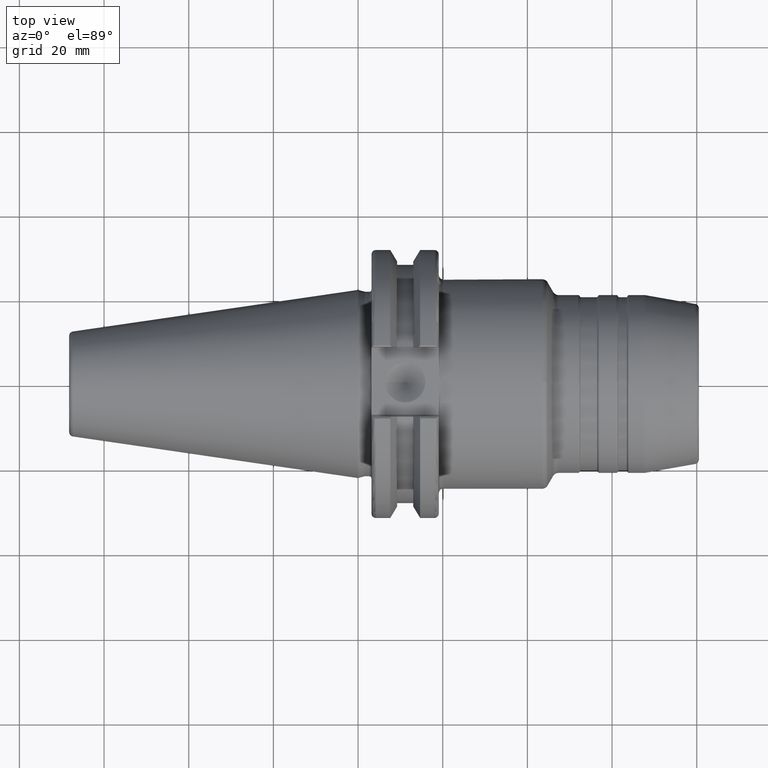
[diagram: clean part render]
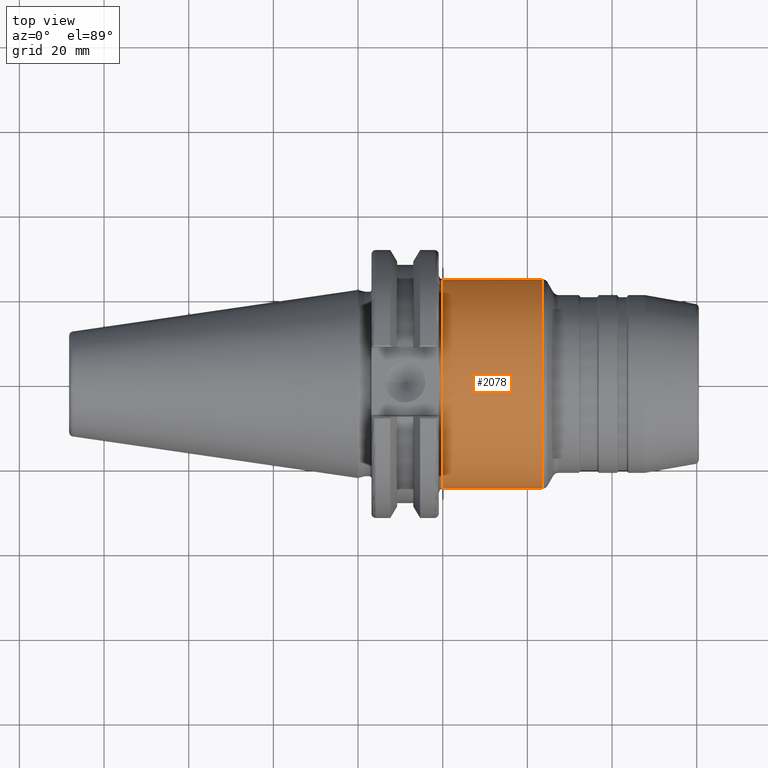
[diagram: same view with one face highlighted and labeled with its STEP entity id]
A machine part, top view. The second image highlights one B-rep face of the part: STEP entity #2078.
In plain terms, the highlighted cylindrical surface (bore or boss wall) has radius 24.75 mm, axis along (1, 0, 0).
Its self-contained STEP definition (entity closure, byte-faithful):
#51=B_SPLINE_CURVE_WITH_KNOTS('',3,(#3328,#3329,#3330,#3331,#3332,#3333,
#3334,#3335,#3336,#3337,#3338,#3339,#3340,#3341,#3342,#3343,#3344,#3345),
 .UNSPECIFIED.,.F.,.F.,(4,2,2,2,2,2,2,2,4),(-2.48845986202558,-2.17733241913027,
-1.86620497623495,-1.55521745362387,-1.24422993101279,-0.933242408401712,
-0.622254885790633,-0.311127442895317,0.),.UNSPECIFIED.);
#181=FACE_OUTER_BOUND('',#290,.T.);
#290=EDGE_LOOP('',(#1442,#1443,#1444,#1445,#1446,#1447,#1448,#1449));
#403=LINE('',#3324,#497);
#497=VECTOR('',#2631,24.75);
#628=CIRCLE('',#2248,24.75);
#629=CIRCLE('',#2249,24.75);
#630=CIRCLE('',#2250,24.75);
#631=CIRCLE('',#2252,24.75);
#632=CIRCLE('',#2253,24.75);
#806=VERTEX_POINT('',#3315);
#807=VERTEX_POINT('',#3317);
#808=VERTEX_POINT('',#3319);
#809=VERTEX_POINT('',#3323);
#810=VERTEX_POINT('',#3325);
#811=VERTEX_POINT('',#3327);
#1060=EDGE_CURVE('',#806,#807,#628,.T.);
#1061=EDGE_CURVE('',#807,#808,#629,.T.);
#1062=EDGE_CURVE('',#808,#806,#630,.T.);
#1063=EDGE_CURVE('',#807,#809,#403,.T.);
#1064=EDGE_CURVE('',#810,#809,#631,.T.);
#1065=EDGE_CURVE('',#810,#811,#51,.T.);
#1066=EDGE_CURVE('',#809,#811,#632,.T.);
#1442=ORIENTED_EDGE('',*,*,#1062,.F.);
#1443=ORIENTED_EDGE('',*,*,#1061,.F.);
#1444=ORIENTED_EDGE('',*,*,#1063,.T.);
#1445=ORIENTED_EDGE('',*,*,#1064,.F.);
#1446=ORIENTED_EDGE('',*,*,#1065,.T.);
#1447=ORIENTED_EDGE('',*,*,#1066,.F.);
#1448=ORIENTED_EDGE('',*,*,#1063,.F.);
#1449=ORIENTED_EDGE('',*,*,#1060,.F.);
#2034=CYLINDRICAL_SURFACE('',#2251,24.75);
#2078=ADVANCED_FACE('',(#181),#2034,.T.);
#2248=AXIS2_PLACEMENT_3D('',#3318,#2623,#2624);
#2249=AXIS2_PLACEMENT_3D('',#3320,#2625,#2626);
#2250=AXIS2_PLACEMENT_3D('',#3321,#2627,#2628);
#2251=AXIS2_PLACEMENT_3D('',#3322,#2629,#2630);
#2252=AXIS2_PLACEMENT_3D('',#3326,#2632,#2633);
#2253=AXIS2_PLACEMENT_3D('',#3346,#2634,#2635);
#2623=DIRECTION('center_axis',(1.,0.,0.));
#2624=DIRECTION('ref_axis',(0.,-1.,1.83697019872103E-16));
#2625=DIRECTION('center_axis',(1.,0.,0.));
#2626=DIRECTION('ref_axis',(0.,-1.,1.83697019872103E-16));
#2627=DIRECTION('center_axis',(1.,0.,0.));
#2628=DIRECTION('ref_axis',(0.,-1.,1.83697019872103E-16));
#2629=DIRECTION('center_axis',(1.,0.,0.));
#2630=DIRECTION('ref_axis',(0.,1.,0.));
#2631=DIRECTION('',(-1.,0.,0.));
#2632=DIRECTION('center_axis',(-1.,0.,0.));
#2633=DIRECTION('ref_axis',(0.,-0.342020143325668,0.939692620785909));
#2634=DIRECTION('center_axis',(-1.,0.,0.));
#2635=DIRECTION('ref_axis',(0.,-0.342020143325668,0.939692620785909));
#3315=CARTESIAN_POINT('',(43.4689110867545,-3.0310008278897E-15,24.75));
#3317=CARTESIAN_POINT('',(43.4689110867545,-24.75,-3.0310008278897E-15));
#3318=CARTESIAN_POINT('Origin',(43.4689110867545,0.,0.));
#3319=CARTESIAN_POINT('',(43.4689110867545,24.75,-1.51550041394485E-15));
#3320=CARTESIAN_POINT('Origin',(43.4689110867545,0.,0.));
#3321=CARTESIAN_POINT('Origin',(43.4689110867545,0.,0.));
#3322=CARTESIAN_POINT('Origin',(31.6924682452695,0.,0.));
#3323=CARTESIAN_POINT('',(20.05,-24.75,-3.0310008278897E-15));
#3324=CARTESIAN_POINT('',(31.6924682452695,-24.75,-3.0310008278897E-15));
#3325=CARTESIAN_POINT('',(20.05,-8.19,-23.3556502799644));
#3326=CARTESIAN_POINT('Origin',(20.05,0.,0.));
#3327=CARTESIAN_POINT('',(20.05,8.19,-23.3556502799644));
#3328=CARTESIAN_POINT('Ctrl Pts',(20.05,-8.19,-23.3556502799644));
#3329=CARTESIAN_POINT('Ctrl Pts',(21.0870914763177,-8.19,-23.3556502799644));
#3330=CARTESIAN_POINT('Ctrl Pts',(22.1874172494719,-7.98112852617488,-23.4319820145953));
#3331=CARTESIAN_POINT('Ctrl Pts',(24.2026226557734,-7.14301766428651,-23.7009173446597));
#3332=CARTESIAN_POINT('Ctrl Pts',(25.1182638848105,-6.51414519102515,-23.8889373554493));
#3333=CARTESIAN_POINT('Ctrl Pts',(26.563820070037,-5.06858900579863,-24.2368381566145));
#3334=CARTESIAN_POINT('Ctrl Pts',(27.1929429534371,-4.15281808103606,-24.420258379043));
#3335=CARTESIAN_POINT('Ctrl Pts',(28.0312404144778,-2.13713243178097,-24.6784841969774));
#3336=CARTESIAN_POINT('Ctrl Pts',(28.24,-1.03662507537027,-24.75));
#3337=CARTESIAN_POINT('Ctrl Pts',(28.24,1.03662507537026,-24.75));
#3338=CARTESIAN_POINT('Ctrl Pts',(28.0312404144778,2.13713243178097,-24.6784841969774));
#3339=CARTESIAN_POINT('Ctrl Pts',(27.1929429534371,4.15281808103606,-24.420258379043));
#3340=CARTESIAN_POINT('Ctrl Pts',(26.563820070037,5.06858900579862,-24.2368381566145));
#3341=CARTESIAN_POINT('Ctrl Pts',(25.1182638848105,6.51414519102515,-23.8889373554493));
#3342=CARTESIAN_POINT('Ctrl Pts',(24.2026226557734,7.14301766428651,-23.7009173446597));
#3343=CARTESIAN_POINT('Ctrl Pts',(22.1874172494719,7.98112852617488,-23.4319820145953));
#3344=CARTESIAN_POINT('Ctrl Pts',(21.0870914763177,8.19,-23.3556502799644));
#3345=CARTESIAN_POINT('Ctrl Pts',(20.05,8.19,-23.3556502799644));
#3346=CARTESIAN_POINT('Origin',(20.05,0.,0.));